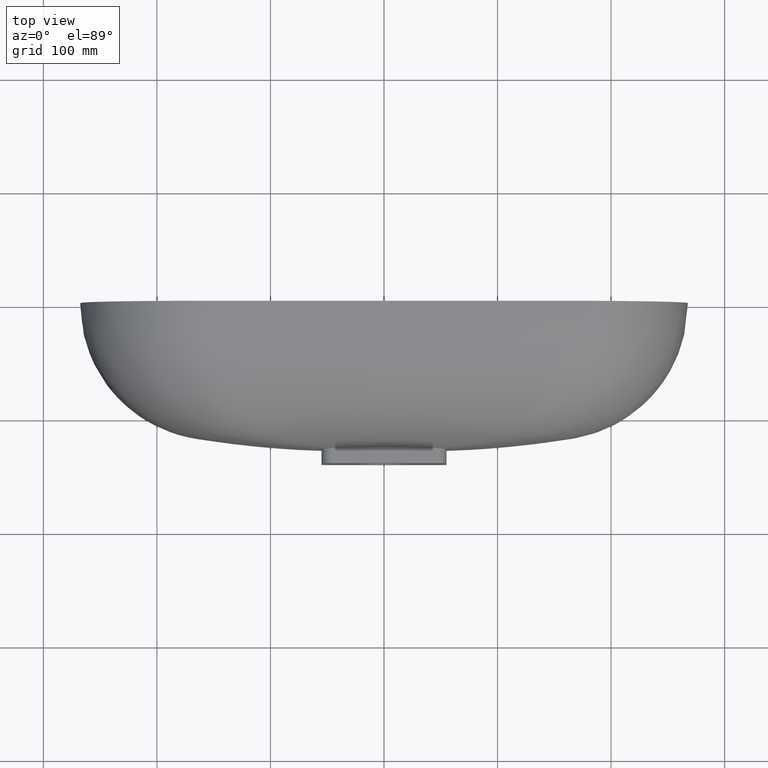
[diagram: clean part render]
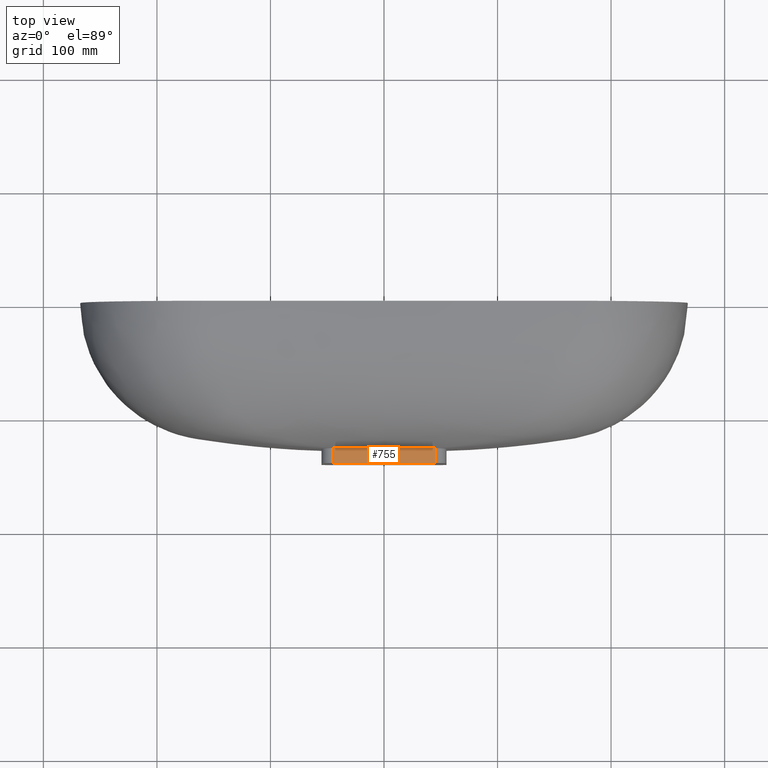
[diagram: same view with one face highlighted and labeled with its STEP entity id]
A machine part, top view. The second image highlights one B-rep face of the part: STEP entity #755.
In plain terms, the highlighted planar face has unit normal (0, -0, -1).
Its self-contained STEP definition (entity closure, byte-faithful):
#275 = ORIENTED_EDGE ( 'NONE', *, *, #4062, .F. ) ;
#363 = CARTESIAN_POINT ( 'NONE',  ( -44.99999999999980815, -141.0000000000011937, 54.99999999999974420 ) ) ;
#424 = CARTESIAN_POINT ( 'NONE',  ( -40.31413895929638613, -127.7270636939197601, 54.99999999999967315 ) ) ;
#471 = CARTESIAN_POINT ( 'NONE',  ( 35.62827118274142180, -127.5519236559619571, 54.99999999999972289 ) ) ;
#553 = CARTESIAN_POINT ( 'NONE',  ( 45.00000000000014921, -140.9999999999986073, 54.99999999999973710 ) ) ;
#755 = ADVANCED_FACE ( 'NONE', ( #4136 ), #2997, .F. ) ;
#914 = CARTESIAN_POINT ( 'NONE',  ( 44.99999999999977973, -127.9056404636094157, 54.99999999999972999 ) ) ;
#923 = ORIENTED_EDGE ( 'NONE', *, *, #5974, .F. ) ;
#1012 = CARTESIAN_POINT ( 'NONE',  ( -43.12558124745358867, -127.8364828006433527, 54.99999999999975131 ) ) ;
#1057 = CARTESIAN_POINT ( 'NONE',  ( 15.00477583441009344, -126.9478165883311220, 54.99999999999972289 ) ) ;
#1061 = DIRECTION ( 'NONE',  ( 0.0000000000000000000, 1.000000000000000000, -9.100188726435631690E-16 ) ) ;
#1215 = DIRECTION ( 'NONE',  ( -1.000000000000000000, -2.868076146948322746E-14, -1.541976423090496126E-16 ) ) ;
#1517 = VERTEX_POINT ( 'NONE', #3306 ) ;
#1603 = CARTESIAN_POINT ( 'NONE',  ( -45.00000000000018474, -127.9056404640073197, 54.99999999999973710 ) ) ;
#1642 = CARTESIAN_POINT ( 'NONE',  ( 1.349307434919665509E-16, -126.8290444375076760, 54.99999999999968736 ) ) ;
#1705 = CARTESIAN_POINT ( 'NONE',  ( 45.00000000000014921, -140.9999999999986073, 54.99999999999973710 ) ) ;
#1786 = CARTESIAN_POINT ( 'NONE',  ( 44.53126939979790677, -127.8920693346367869, 54.99999999999972289 ) ) ;
#2233 = CARTESIAN_POINT ( 'NONE',  ( -26.25496012767055731, -127.2401267822113908, 54.99999999999974420 ) ) ;
#2239 = DIRECTION ( 'NONE',  ( -2.867289048822921029E-14, 1.000000000000000000, -9.100188726435675078E-16 ) ) ;
#2285 = CARTESIAN_POINT ( 'NONE',  ( 45.00000000000014921, -140.9999999999986073, 54.99999999999973710 ) ) ;
#2373 = CARTESIAN_POINT ( 'NONE',  ( 42.65702733151203319, -127.8183660248243569, 54.99999999999970868 ) ) ;
#2823 = CARTESIAN_POINT ( 'NONE',  ( -37.50260675446316583, -127.6203940476525815, 54.99999999999969447 ) ) ;
#2871 = CARTESIAN_POINT ( 'NONE',  ( 37.50269645254587658, -127.6203973872704580, 54.99999999999974420 ) ) ;
#2883 = EDGE_CURVE ( 'NONE', #7608, #6757, #7112, .T. ) ;
#2997 = PLANE ( 'NONE',  #6480 ) ;
#3306 = CARTESIAN_POINT ( 'NONE',  ( 1.349307434919665509E-16, -126.8290444375076760, 54.99999999999968736 ) ) ;
#3417 = CARTESIAN_POINT ( 'NONE',  ( -42.65700364678939849, -127.8183651075836025, 54.99999999999970157 ) ) ;
#3464 = CARTESIAN_POINT ( 'NONE',  ( 26.25497945959046575, -127.2401277112136739, 54.99999999999972289 ) ) ;
#3833 = VECTOR ( 'NONE', #2239, 1000.000000000000000 ) ;
#3878 = ORIENTED_EDGE ( 'NONE', *, *, #7716, .F. ) ;
#4003 = CARTESIAN_POINT ( 'NONE',  ( -44.53127372155559272, -127.8920694600048904, 54.99999999999972999 ) ) ;
#4047 = CARTESIAN_POINT ( 'NONE',  ( 1.349307434919665509E-16, -126.8290444375076760, 54.99999999999968736 ) ) ;
#4062 = EDGE_CURVE ( 'NONE', #7586, #1517, #4241, .T. ) ;
#4108 = DIRECTION ( 'NONE',  ( -2.867289048822921029E-14, 1.000000000000000000, -9.100188726435675078E-16 ) ) ;
#4136 = FACE_OUTER_BOUND ( 'NONE', #6717, .T. ) ;
#4188 = CARTESIAN_POINT ( 'NONE',  ( 44.99999999999977973, -127.9056404636094157, 54.99999999999972999 ) ) ;
#4205 = VECTOR ( 'NONE', #4108, 1000.000000000000000 ) ;
#4207 = LINE ( 'NONE', #6616, #7241 ) ;
#4241 = B_SPLINE_CURVE_WITH_KNOTS ( 'NONE', 3,
 ( #1603, #4003, #6415, #1012, #3417, #5828, #424, #2823, #5236, #7642, #2233, #4637, #7045, #1642 ),
 .UNSPECIFIED., .F., .F.,
 ( 4, 2, 2, 2, 2, 2, 4 ),
 ( 1.435477727843220823E-11, 0.001406758275100445385, 0.002813516535846113421, 0.005627033057337428243, 0.01125406610032008044, 0.02250813218628538309, 0.04501626435821598493 ),
 .UNSPECIFIED. ) ;
#4562 = B_SPLINE_CURVE_WITH_KNOTS ( 'NONE', 3,
 ( #4047, #6458, #1057, #3464, #5873, #471, #2871, #5380, #7790, #2373, #4780, #7190, #1786, #4188 ),
 .UNSPECIFIED., .F., .F.,
 ( 4, 2, 2, 2, 2, 2, 4 ),
 ( 0.04501626435821598493, 0.06752339204872424838, 0.07877695589397837317, 0.08440373781660542862, 0.08721712877791895635, 0.08862382425857570634, 0.09003051973923245632 ),
 .UNSPECIFIED. ) ;
#4607 = DIRECTION ( 'NONE',  ( 1.541976423090756943E-16, -9.100188726435631690E-16, -1.000000000000000000 ) ) ;
#4637 = CARTESIAN_POINT ( 'NONE',  ( -15.00443726629276853, -126.9478086448382044, 54.99999999999972289 ) ) ;
#4780 = CARTESIAN_POINT ( 'NONE',  ( 43.12559865178802454, -127.8364834694293251, 54.99999999999973710 ) ) ;
#4903 = ORIENTED_EDGE ( 'NONE', *, *, #5775, .F. ) ;
#5236 = CARTESIAN_POINT ( 'NONE',  ( -35.62816565010221836, -127.5519198551692881, 54.99999999999972999 ) ) ;
#5242 = LINE ( 'NONE', #7649, #3833 ) ;
#5380 = CARTESIAN_POINT ( 'NONE',  ( 40.31419570511020822, -127.7270658786250834, 54.99999999999971578 ) ) ;
#5775 = EDGE_CURVE ( 'NONE', #7016, #7586, #5242, .T. ) ;
#5828 = CARTESIAN_POINT ( 'NONE',  ( -41.25129082680913228, -127.7634010210226023, 54.99999999999968736 ) ) ;
#5873 = CARTESIAN_POINT ( 'NONE',  ( 30.00463869743695966, -127.3566839528189831, 54.99999999999973710 ) ) ;
#5974 = EDGE_CURVE ( 'NONE', #1517, #6757, #4562, .T. ) ;
#6415 = CARTESIAN_POINT ( 'NONE',  ( -44.06274961525751621, -127.8723155839829531, 54.99999999999975842 ) ) ;
#6458 = CARTESIAN_POINT ( 'NONE',  ( 7.502126069244008377, -126.8290444375077328, 54.99999999999975131 ) ) ;
#6480 = AXIS2_PLACEMENT_3D ( 'NONE', #553, #4607, #1061 ) ;
#6616 = CARTESIAN_POINT ( 'NONE',  ( 45.00000000000014921, -140.9999999999986073, 54.99999999999973710 ) ) ;
#6717 = EDGE_LOOP ( 'NONE', ( #7348, #923, #275, #4903, #3878 ) ) ;
#6757 = VERTEX_POINT ( 'NONE', #914 ) ;
#7016 = VERTEX_POINT ( 'NONE', #363 ) ;
#7045 = CARTESIAN_POINT ( 'NONE',  ( -7.502460885235117338, -126.8290444375077044, 54.99999999999972999 ) ) ;
#7112 = LINE ( 'NONE', #1705, #4205 ) ;
#7190 = CARTESIAN_POINT ( 'NONE',  ( 44.06275539463435820, -127.8723158016298385, 54.99999999999977263 ) ) ;
#7241 = VECTOR ( 'NONE', #1215, 1000.000000000000000 ) ;
#7348 = ORIENTED_EDGE ( 'NONE', *, *, #2883, .T. ) ;
#7586 = VERTEX_POINT ( 'NONE', #7698 ) ;
#7608 = VERTEX_POINT ( 'NONE', #2285 ) ;
#7642 = CARTESIAN_POINT ( 'NONE',  ( -30.00450933613446480, -127.3566797355829578, 54.99999999999970868 ) ) ;
#7649 = CARTESIAN_POINT ( 'NONE',  ( -44.99999999999980815, -141.0000000000011937, 54.99999999999974420 ) ) ;
#7698 = CARTESIAN_POINT ( 'NONE',  ( -45.00000000000018474, -127.9056404640073197, 54.99999999999973710 ) ) ;
#7716 = EDGE_CURVE ( 'NONE', #7608, #7016, #4207, .T. ) ;
#7790 = CARTESIAN_POINT ( 'NONE',  ( 41.25133477279798200, -127.7634027570198327, 54.99999999999971578 ) ) ;